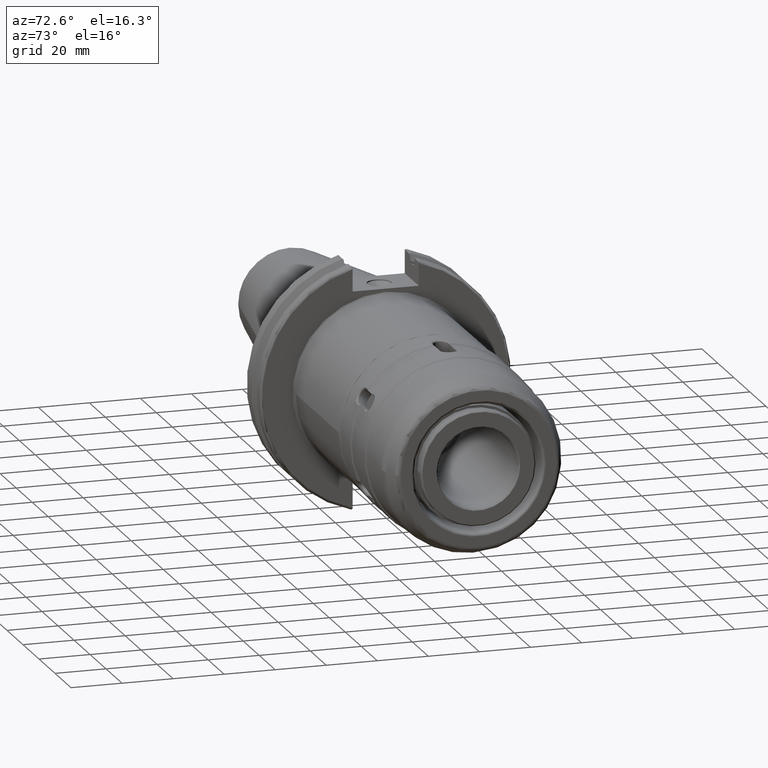
[diagram: clean part render]
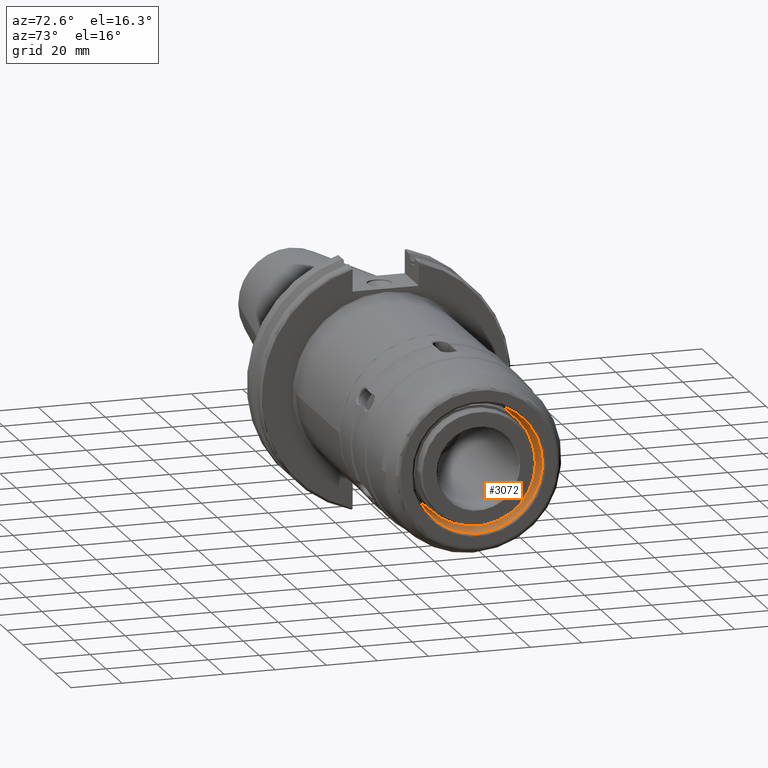
[diagram: same view with one face highlighted and labeled with its STEP entity id]
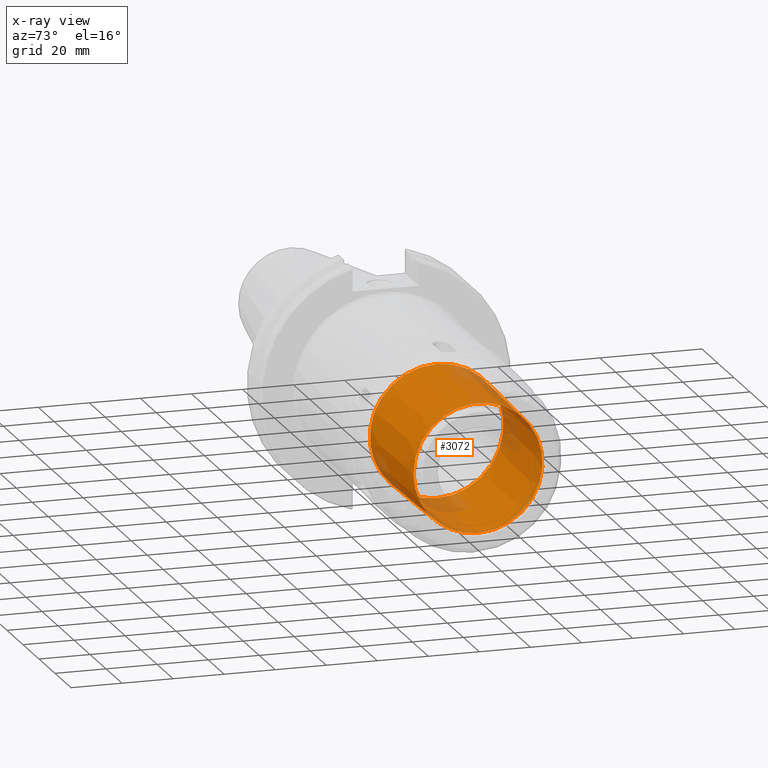
[diagram: x-ray of the same camera — body ghosted, the highlighted face saturated]
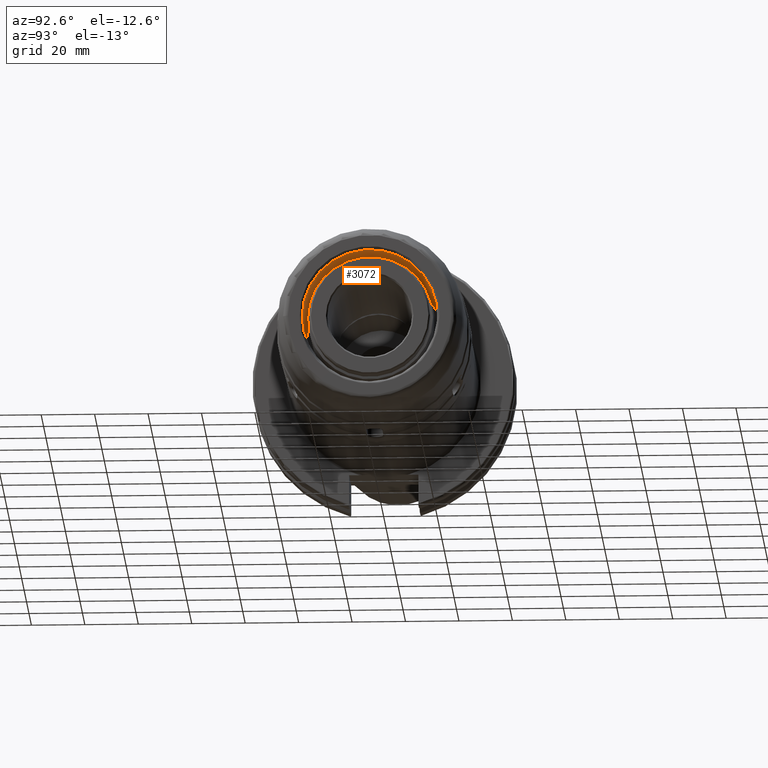
[diagram: same view with one face highlighted and labeled with its STEP entity id]
A machine part, auxiliary view. The second image highlights one B-rep face of the part: STEP entity #3072.
The next image is the same camera in x-ray: the body ghosted, the highlighted face saturated — about 12% of this face is hidden behind the body in this view.
A second angle (auxiliary view) of the same face is appended — the face is thin or edge-on in the first view.
In plain terms, the highlighted conical surface has half-angle 0.987 deg.
Its self-contained STEP definition (entity closure, byte-faithful):
#217=CONICAL_SURFACE('',#3419,25.7071372830199,0.017229890375688);
#437=LINE('',#6397,#663);
#663=VECTOR('',#4199,25.7071372830199);
#830=FACE_OUTER_BOUND('',#1019,.T.);
#1019=EDGE_LOOP('',(#2779,#2780,#2781,#2782,#2783,#2784));
#1150=CIRCLE('',#3415,26.1603287584629);
#1151=CIRCLE('',#3416,26.1603287584629);
#1153=CIRCLE('',#3420,25.2680284793988);
#1154=CIRCLE('',#3421,25.2680284793988);
#1490=VERTEX_POINT('',#6384);
#1491=VERTEX_POINT('',#6386);
#1493=VERTEX_POINT('',#6393);
#1494=VERTEX_POINT('',#6394);
#1924=EDGE_CURVE('',#1490,#1491,#1150,.T.);
#1925=EDGE_CURVE('',#1491,#1490,#1151,.T.);
#1927=EDGE_CURVE('',#1493,#1494,#1153,.T.);
#1928=EDGE_CURVE('',#1494,#1493,#1154,.T.);
#1929=EDGE_CURVE('',#1494,#1491,#437,.T.);
#2779=ORIENTED_EDGE('',*,*,#1927,.F.);
#2780=ORIENTED_EDGE('',*,*,#1928,.F.);
#2781=ORIENTED_EDGE('',*,*,#1929,.T.);
#2782=ORIENTED_EDGE('',*,*,#1924,.F.);
#2783=ORIENTED_EDGE('',*,*,#1925,.F.);
#2784=ORIENTED_EDGE('',*,*,#1929,.F.);
#3072=ADVANCED_FACE('',(#830),#217,.F.);
#3415=AXIS2_PLACEMENT_3D('',#6387,#4185,#4186);
#3416=AXIS2_PLACEMENT_3D('',#6388,#4187,#4188);
#3419=AXIS2_PLACEMENT_3D('',#6392,#4193,#4194);
#3420=AXIS2_PLACEMENT_3D('',#6395,#4195,#4196);
#3421=AXIS2_PLACEMENT_3D('',#6396,#4197,#4198);
#4185=DIRECTION('center_axis',(1.,0.,0.));
#4186=DIRECTION('ref_axis',(0.,-1.,-6.12323399573677E-17));
#4187=DIRECTION('center_axis',(1.,0.,0.));
#4188=DIRECTION('ref_axis',(0.,-1.,-6.12323399573677E-17));
#4193=DIRECTION('center_axis',(-1.,0.,0.));
#4194=DIRECTION('ref_axis',(0.,1.,0.));
#4195=DIRECTION('center_axis',(-1.,0.,0.));
#4196=DIRECTION('ref_axis',(0.,-1.,3.06161699786838E-17));
#4197=DIRECTION('center_axis',(-1.,0.,0.));
#4198=DIRECTION('ref_axis',(0.,-1.,3.06161699786838E-17));
#4199=DIRECTION('',(-0.999851569110921,-0.017229037884603,-2.10994860977676E-18));
#6384=CARTESIAN_POINT('',(8.19997031382218,26.1603287584629,3.2037162878694E-15));
#6386=CARTESIAN_POINT('',(8.19997031382219,-26.1603287584629,-3.2037162878694E-15));
#6387=CARTESIAN_POINT('Origin',(8.19997031382218,0.,-1.6018581439347E-15));
#6388=CARTESIAN_POINT('Origin',(8.19997031382218,0.,-1.6018581439347E-15));
#6392=CARTESIAN_POINT('Origin',(34.5,0.,0.));
#6393=CARTESIAN_POINT('',(59.9827709621154,-3.09444101980599E-15,25.2680284793988));
#6394=CARTESIAN_POINT('',(59.9827709621154,-25.2680284793988,-3.09444101980599E-15));
#6395=CARTESIAN_POINT('Origin',(59.9827709621154,0.,-3.86805127475749E-15));
#6396=CARTESIAN_POINT('Origin',(59.9827709621154,0.,-3.86805127475749E-15));
#6397=CARTESIAN_POINT('',(34.5,-25.7071372830199,-3.14821633888919E-15));